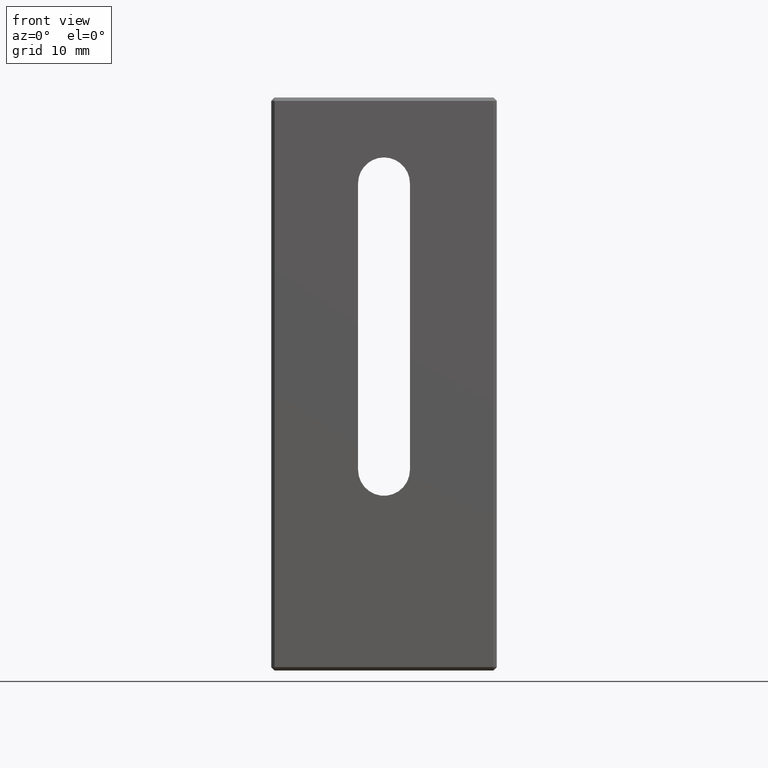
[diagram: clean part render]
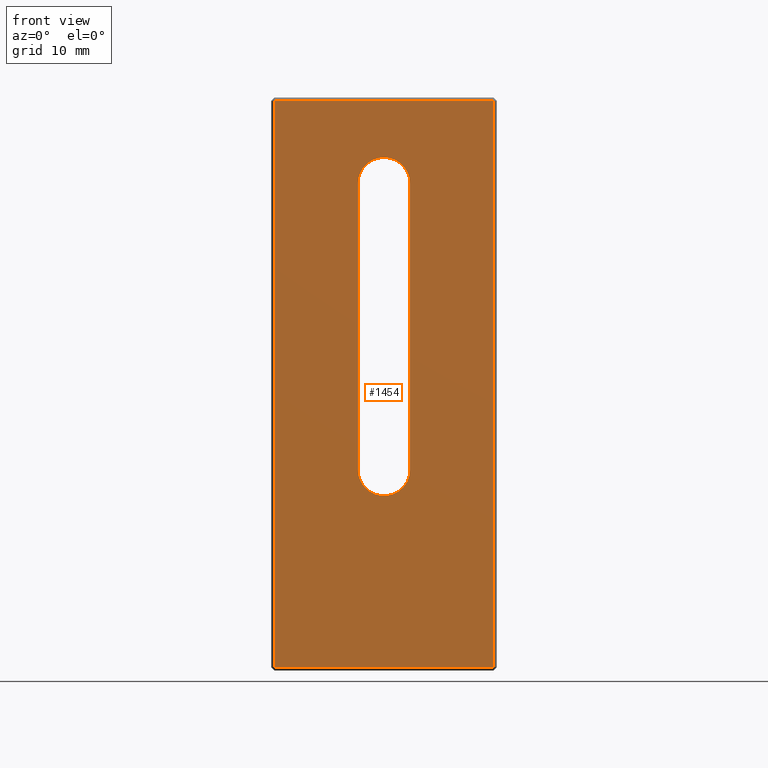
[diagram: same view with one face highlighted and labeled with its STEP entity id]
A machine part, front view. The second image highlights one B-rep face of the part: STEP entity #1454.
In plain terms, the highlighted planar face has unit normal (-0, 1, 0).
Its self-contained STEP definition (entity closure, byte-faithful):
#23 = VERTEX_POINT ( 'NONE', #667 ) ;
#29 = DIRECTION ( 'NONE',  ( 0.000000000000000000, 0.000000000000000000, 1.000000000000000000 ) ) ;
#39 = DIRECTION ( 'NONE',  ( 0.000000000000000000, 1.000000000000000000, 0.000000000000000000 ) ) ;
#41 = EDGE_CURVE ( 'NONE', #239, #1149, #522, .T. ) ;
#42 = CARTESIAN_POINT ( 'NONE',  ( -2.299999999999998934, -6.938893903907228378E-15, 17.78999999999999559 ) ) ;
#49 = CARTESIAN_POINT ( 'NONE',  ( -9.699999999999999289, 0.000000000000000000, 0.000000000000000000 ) ) ;
#68 = LINE ( 'NONE', #1038, #1294 ) ;
#79 = CARTESIAN_POINT ( 'NONE',  ( -9.699999999999999289, -6.184466335694132870E-15, 50.49999999999999289 ) ) ;
#111 = VERTEX_POINT ( 'NONE', #1040 ) ;
#147 = DIRECTION ( 'NONE',  ( 1.000000000000000000, 0.000000000000000000, 0.000000000000000000 ) ) ;
#207 = VECTOR ( 'NONE', #147, 1000.000000000000000 ) ;
#237 = EDGE_CURVE ( 'NONE', #812, #917, #887, .T. ) ;
#239 = VERTEX_POINT ( 'NONE', #79 ) ;
#255 = DIRECTION ( 'NONE',  ( 0.000000000000000000, -1.224646799147353207E-16, 1.000000000000000000 ) ) ;
#279 = CARTESIAN_POINT ( 'NONE',  ( -2.299999999999995826, -5.289249525517417612E-15, 43.18999999999999062 ) ) ;
#282 = CARTESIAN_POINT ( 'NONE',  ( 9.699999999999999289, -6.221205739668553730E-15, 50.79999999999999716 ) ) ;
#285 = AXIS2_PLACEMENT_3D ( 'NONE', #1128, #1113, #29 ) ;
#286 = DIRECTION ( 'NONE',  ( 1.024442997624098953E-16, 0.000000000000000000, 1.000000000000000000 ) ) ;
#325 = DIRECTION ( 'NONE',  ( 0.000000000000000000, 0.000000000000000000, 1.000000000000000000 ) ) ;
#342 = EDGE_CURVE ( 'NONE', #1149, #812, #755, .T. ) ;
#354 = VERTEX_POINT ( 'NONE', #1367 ) ;
#360 = ORIENTED_EDGE ( 'NONE', *, *, #933, .T. ) ;
#367 = VERTEX_POINT ( 'NONE', #279 ) ;
#369 = DIRECTION ( 'NONE',  ( -0.000000000000000000, 1.000000000000000000, 1.224646799147353207E-16 ) ) ;
#396 = DIRECTION ( 'NONE',  ( 0.000000000000000000, 0.000000000000000000, 1.000000000000000000 ) ) ;
#397 = EDGE_CURVE ( 'NONE', #543, #111, #844, .T. ) ;
#406 = ORIENTED_EDGE ( 'NONE', *, *, #565, .T. ) ;
#410 = CIRCLE ( 'NONE', #1579, 2.299999999999996270 ) ;
#484 = EDGE_CURVE ( 'NONE', #367, #354, #410, .T. ) ;
#486 = VECTOR ( 'NONE', #762, 1000.000000000000000 ) ;
#504 = ORIENTED_EDGE ( 'NONE', *, *, #41, .T. ) ;
#522 = LINE ( 'NONE', #49, #550 ) ;
#543 = VERTEX_POINT ( 'NONE', #1299 ) ;
#550 = VECTOR ( 'NONE', #809, 1000.000000000000000 ) ;
#555 = EDGE_CURVE ( 'NONE', #23, #543, #1030, .T. ) ;
#560 = DIRECTION ( 'NONE',  ( 0.000000000000000000, 1.000000000000000000, 0.000000000000000000 ) ) ;
#565 = EDGE_CURVE ( 'NONE', #917, #239, #68, .T. ) ;
#586 = CARTESIAN_POINT ( 'NONE',  ( -9.699999999999999289, -3.673940397442079836E-17, 0.3000000000000016542 ) ) ;
#599 = ORIENTED_EDGE ( 'NONE', *, *, #764, .T. ) ;
#612 = ORIENTED_EDGE ( 'NONE', *, *, #237, .T. ) ;
#651 = CARTESIAN_POINT ( 'NONE',  ( 0.000000000000000000, -6.938893903907228378E-15, 17.78999999999999204 ) ) ;
#667 = CARTESIAN_POINT ( 'NONE',  ( 2.300000000000002487, -6.938893903907228378E-15, 43.18999999999999062 ) ) ;
#668 = DIRECTION ( 'NONE',  ( -1.365923996832131856E-16, -0.000000000000000000, -1.000000000000000000 ) ) ;
#740 = EDGE_LOOP ( 'NONE', ( #863, #1457, #360, #1449, #599 ) ) ;
#755 = LINE ( 'NONE', #1231, #207 ) ;
#762 = DIRECTION ( 'NONE',  ( 0.000000000000000000, -1.224646799147353207E-16, 1.000000000000000000 ) ) ;
#764 = EDGE_CURVE ( 'NONE', #354, #23, #1580, .T. ) ;
#767 = LINE ( 'NONE', #42, #1270 ) ;
#809 = DIRECTION ( 'NONE',  ( 0.000000000000000000, 1.224646799147353207E-16, -1.000000000000000000 ) ) ;
#812 = VERTEX_POINT ( 'NONE', #1240 ) ;
#844 = CIRCLE ( 'NONE', #1528, 2.299999999999999822 ) ;
#863 = ORIENTED_EDGE ( 'NONE', *, *, #555, .T. ) ;
#868 = PLANE ( 'NONE',  #1070 ) ;
#887 = LINE ( 'NONE', #282, #486 ) ;
#917 = VERTEX_POINT ( 'NONE', #1483 ) ;
#933 = EDGE_CURVE ( 'NONE', #111, #367, #767, .T. ) ;
#995 = EDGE_LOOP ( 'NONE', ( #612, #406, #504, #1180 ) ) ;
#1030 = LINE ( 'NONE', #1518, #1473 ) ;
#1038 = CARTESIAN_POINT ( 'NONE',  ( 10.00000000000000000, -6.184466335694132870E-15, 50.49999999999999289 ) ) ;
#1040 = CARTESIAN_POINT ( 'NONE',  ( -2.299999999999998934, -6.938893903907228378E-15, 17.78999999999999559 ) ) ;
#1070 = AXIS2_PLACEMENT_3D ( 'NONE', #1450, #369, #255 ) ;
#1113 = DIRECTION ( 'NONE',  ( 0.000000000000000000, 1.000000000000000000, 0.000000000000000000 ) ) ;
#1128 = CARTESIAN_POINT ( 'NONE',  ( 2.975891721928067571E-15, -6.938893903907228378E-15, 43.18999999999999062 ) ) ;
#1149 = VERTEX_POINT ( 'NONE', #586 ) ;
#1180 = ORIENTED_EDGE ( 'NONE', *, *, #342, .T. ) ;
#1228 = FACE_BOUND ( 'NONE', #740, .T. ) ;
#1231 = CARTESIAN_POINT ( 'NONE',  ( 10.00000000000000000, -3.673940397442079836E-17, 0.3000000000000016542 ) ) ;
#1240 = CARTESIAN_POINT ( 'NONE',  ( 9.699999999999999289, -3.673940397442079836E-17, 0.3000000000000016542 ) ) ;
#1270 = VECTOR ( 'NONE', #286, 1000.000000000000000 ) ;
#1294 = VECTOR ( 'NONE', #1527, 1000.000000000000000 ) ;
#1299 = CARTESIAN_POINT ( 'NONE',  ( 2.299999999999998934, -6.938893903907228378E-15, 17.78999999999999559 ) ) ;
#1331 = FACE_OUTER_BOUND ( 'NONE', #995, .T. ) ;
#1367 = CARTESIAN_POINT ( 'NONE',  ( 2.975891721928067571E-15, -6.938893903907228378E-15, 45.48999999999998778 ) ) ;
#1385 = CARTESIAN_POINT ( 'NONE',  ( 2.975891721928067571E-15, -6.938893903907228378E-15, 43.18999999999999062 ) ) ;
#1449 = ORIENTED_EDGE ( 'NONE', *, *, #484, .T. ) ;
#1450 = CARTESIAN_POINT ( 'NONE',  ( 10.00000000000000000, 0.000000000000000000, 0.000000000000000000 ) ) ;
#1454 = ADVANCED_FACE ( 'NONE', ( #1331, #1228 ), #868, .F. ) ;
#1457 = ORIENTED_EDGE ( 'NONE', *, *, #397, .T. ) ;
#1473 = VECTOR ( 'NONE', #668, 1000.000000000000000 ) ;
#1483 = CARTESIAN_POINT ( 'NONE',  ( 9.699999999999999289, -6.184466335694132870E-15, 50.49999999999999289 ) ) ;
#1518 = CARTESIAN_POINT ( 'NONE',  ( 2.299999999999998934, -6.938893903907228378E-15, 17.78999999999999559 ) ) ;
#1527 = DIRECTION ( 'NONE',  ( -1.000000000000000000, 0.000000000000000000, 0.000000000000000000 ) ) ;
#1528 = AXIS2_PLACEMENT_3D ( 'NONE', #651, #39, #396 ) ;
#1579 = AXIS2_PLACEMENT_3D ( 'NONE', #1385, #560, #325 ) ;
#1580 = CIRCLE ( 'NONE', #285, 2.299999999999996270 ) ;